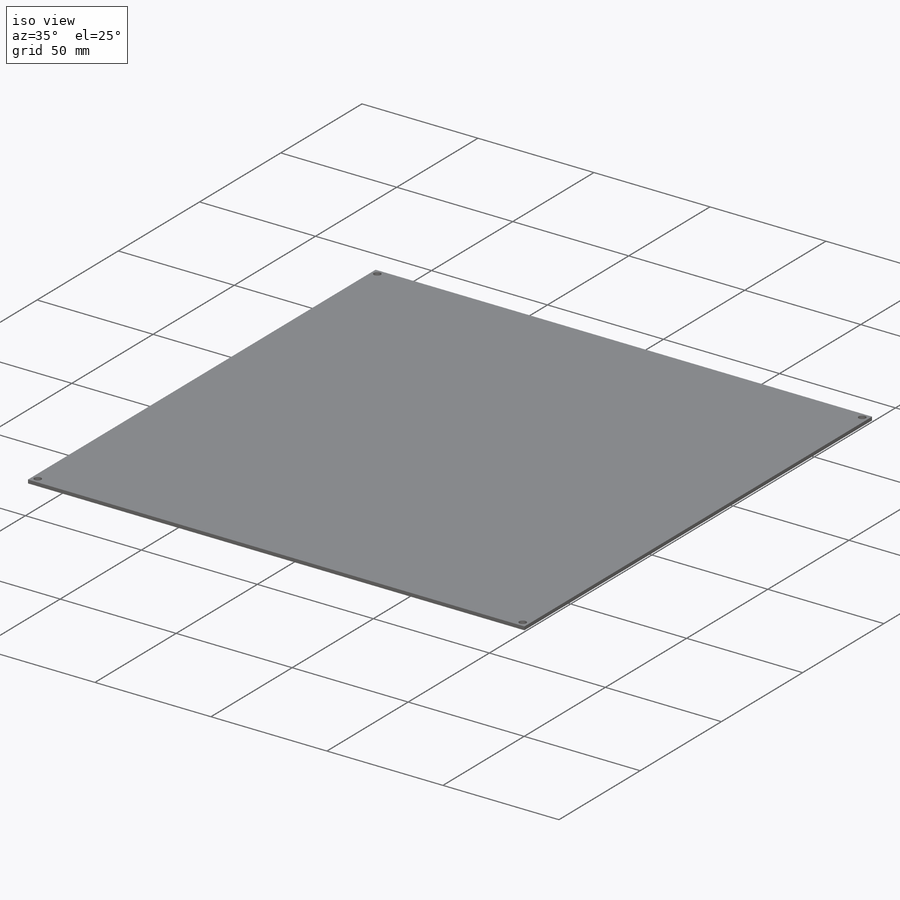
[diagram: iso view]
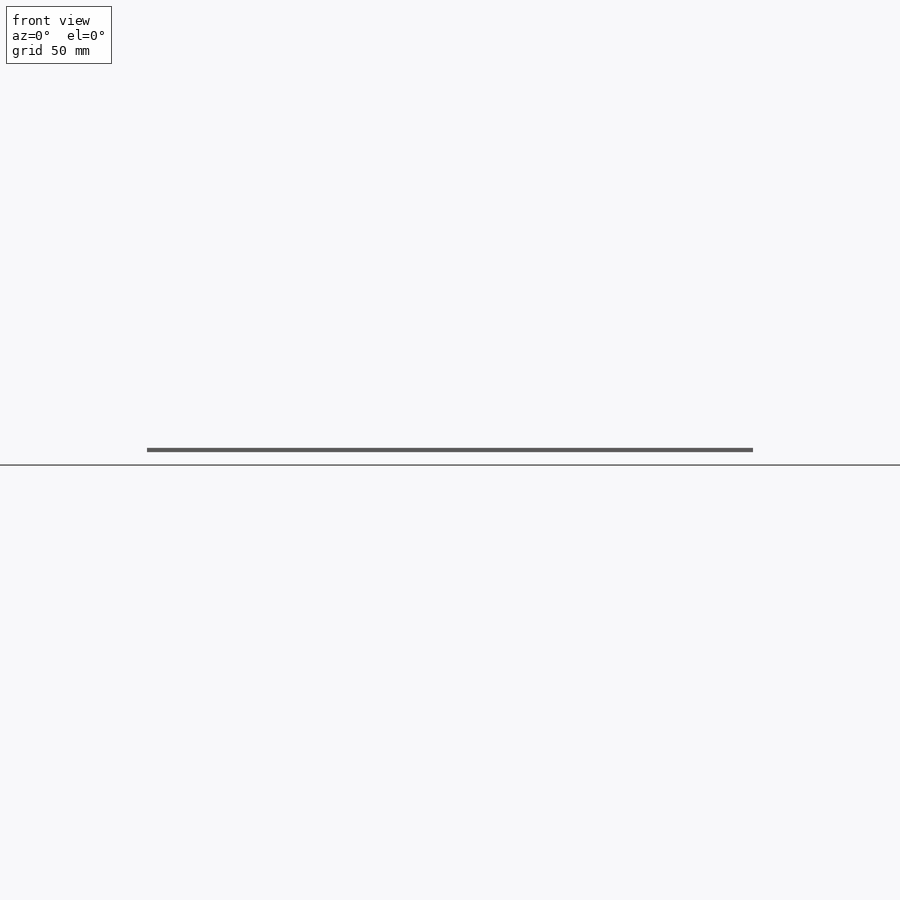
[diagram: front view]
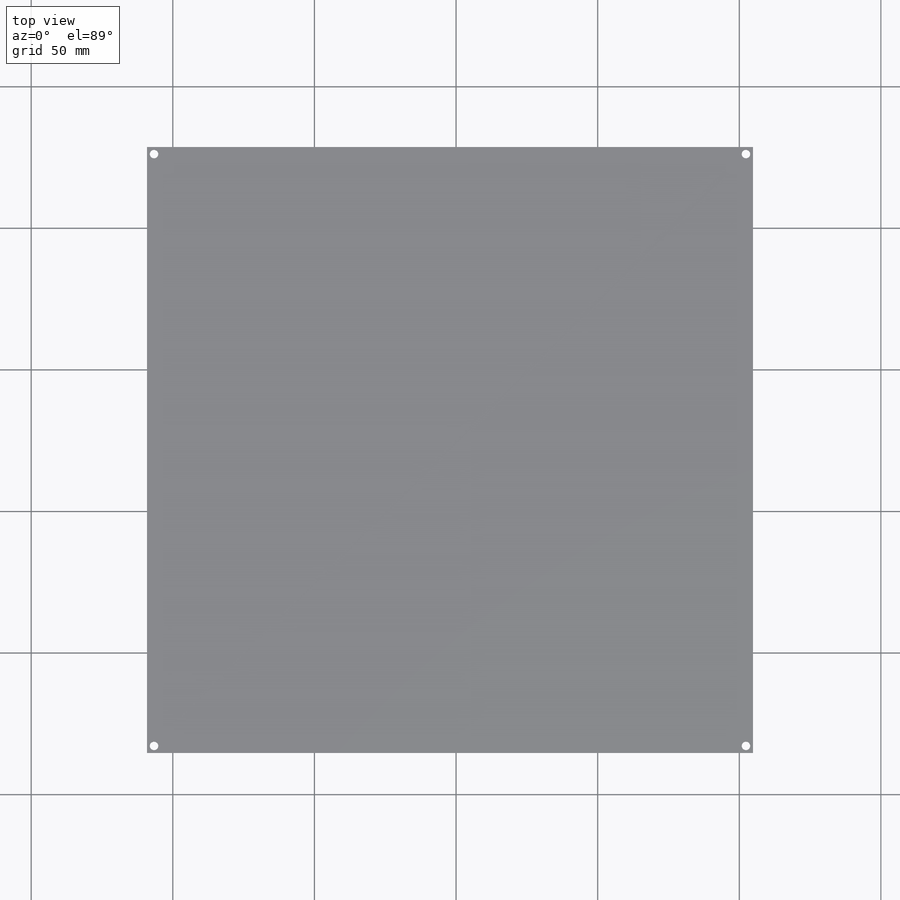
[diagram: top view]
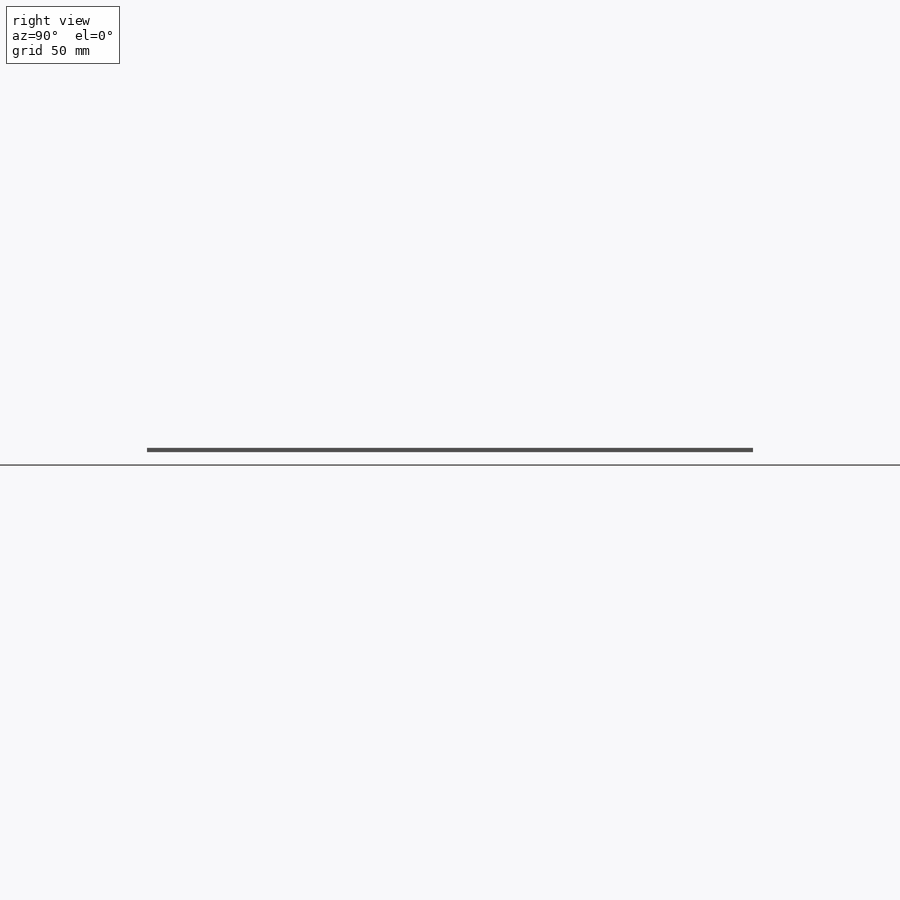
[diagram: right view]
SOLIDWORKS PART (.sldprt)
format: sldprt  version: not decoded by parser v0  size: 377,344 bytes
history: native  units: mm
features: sketch x5, plane x3, hole x2, material x1, extrude x1 (+9 scaffold rows collapsed)
feature tree (21):
  scaffold x9  (default folders/planes/origin — collapsed)
  material  "Matériau <non spécifié>"
  plane  "Plan de face"
  plane  "Plan de dessus"
  plane  "Plan de droite"
  sketch  "Esquisse1"  dims[c1.D1=~174.430592mm c1.D2=~214.790861mm c2.D1=214.0mm c2.D2=214.0mm c2.D3=~302.641702mm]
  extrude  "Boss.-Extru.1"  Depth=8mm
  hole  "Dégagement M31"  Diameter=3.2mm Depth=8mm
  sketch  "Esquisse3"  dims[D1=2.5mm D2=2.5mm D3=2.5mm D4=2.5mm D5=2.5mm D6=2.5mm D7=2.5mm D8=2.5mm]
  sketch  "Esquisse4"  dims[hole-wizard template sketch: 59 standard entries collapsed; hole parameters kept: c18.Diamètre du perçage jusqu'au prochain=3.2mm c18.Profondeur du perçage jusqu'au prochain=8.0mm]
  hole  "Fraisage pour vis à tête fraisée M31"  Diameter=3.4mm Depth=8mm
  sketch  "Esquisse6"
  sketch  "Esquisse5"  dims[hole-wizard template sketch: 55 standard entries collapsed; hole parameters kept: c17.Profondeur du perçage jusqu'au prochain=8.0mm c17.Diamètre du fraisage entrant=6.3mm c17.D4=~3.666174mm c17.Angle du fraisage entrant=90.0deg]
decode coverage: 7 of 8 modeling features carry decoded parameters
note: ~ marks probable driven/reference dimensions
note: suppression state not decoded; provenance and decode notes live in map.json
